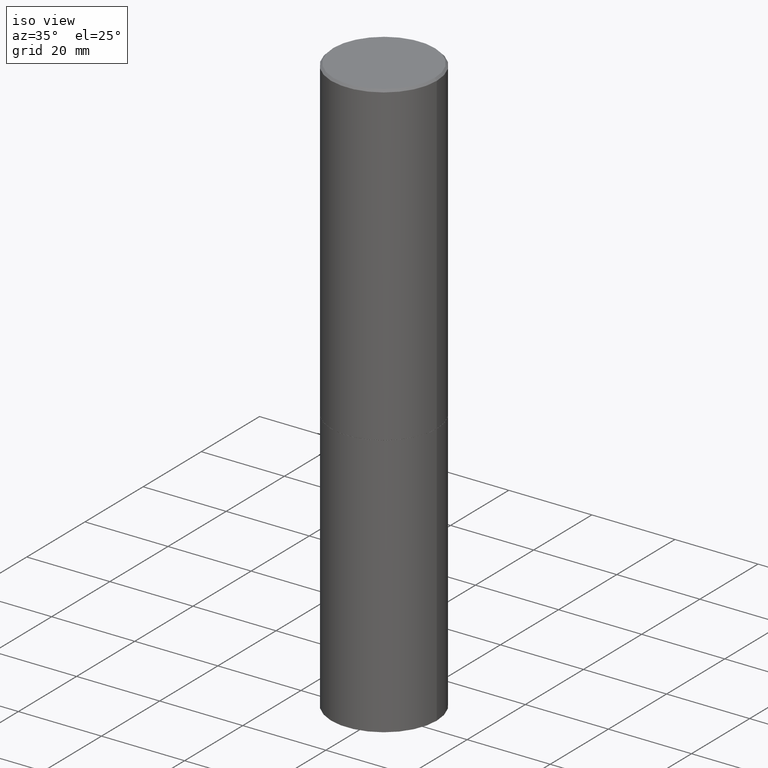
[diagram: clean part render]
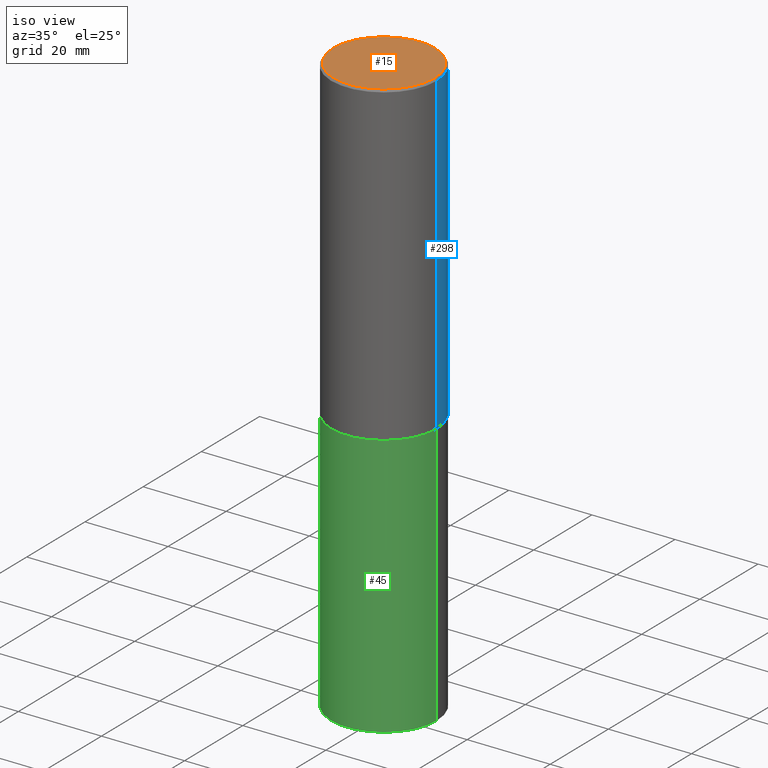
[diagram: same view with three faces highlighted in distinct colors, each labeled with its STEP entity id]
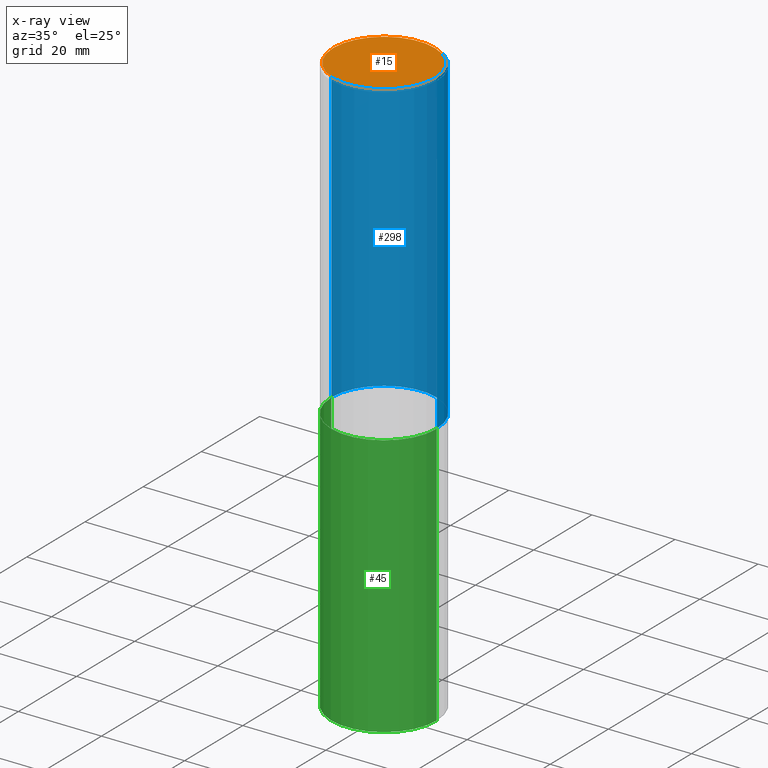
[diagram: x-ray of the same camera — body ghosted, the three highlighted faces saturated]
A machine part, iso view with three faces highlighted in distinct colors.
The next image is the same camera in x-ray (body ghosted, the three faces saturated) — at least one of them is partly hidden behind the body in this view.
Their STEP definitions:

[orange] entity #15 — the highlighted planar face has unit normal (0, -0, -1).
#15 = ADVANCED_FACE ( 'NONE', ( #305 ), #23, .F. ) ;
#23 = PLANE ( 'NONE',  #313 ) ;
#49 = ORIENTED_EDGE ( 'NONE', *, *, #73, .T. ) ;
#50 = CARTESIAN_POINT ( 'NONE',  ( 3.351822085289405181E-15, 0.4799999999999996492, -1.669508273909558064E-15 ) ) ;
#52 = CARTESIAN_POINT ( 'NONE',  ( -3.131554243005659264E-46, 4.471029511141341874E-32, 1.280553747030123384E-17 ) ) ;
#70 = DIRECTION ( 'NONE',  ( 1.000000000000000000, -6.982962677686267499E-15, 4.876036955247132767E-29 ) ) ;
#73 = EDGE_CURVE ( 'NONE', #83, #198, #214, .T. ) ;
#83 = VERTEX_POINT ( 'NONE', #190 ) ;
#92 = EDGE_CURVE ( 'NONE', #198, #83, #228, .T. ) ;
#145 = DIRECTION ( 'NONE',  ( 2.438088387897960049E-29, -3.491481338843145188E-15, -1.000000000000000000 ) ) ;
#149 = DIRECTION ( 'NONE',  ( -2.445468806185136597E-29, 3.491481338843145583E-15, 1.000000000000000000 ) ) ;
#190 = CARTESIAN_POINT ( 'NONE',  ( 0.4799999999999996492, -3.396558832296480127E-15, 1.280553747032483033E-17 ) ) ;
#198 = VERTEX_POINT ( 'NONE', #299 ) ;
#211 = CARTESIAN_POINT ( 'NONE',  ( -3.131554243005659264E-46, 4.471029511141341874E-32, 1.280553747030123384E-17 ) ) ;
#214 = CIRCLE ( 'NONE', #315, 0.4799999999999996492 ) ;
#228 = CIRCLE ( 'NONE', #243, 0.4799999999999996492 ) ;
#243 = AXIS2_PLACEMENT_3D ( 'NONE', #52, #149, #361 ) ;
#248 = DIRECTION ( 'NONE',  ( -1.000000000000000000, 6.982962677686265922E-15, -4.876176775795935793E-29 ) ) ;
#273 = EDGE_LOOP ( 'NONE', ( #293, #49 ) ) ;
#290 = DIRECTION ( 'NONE',  ( -2.445468806185136597E-29, 3.491481338843145583E-15, 1.000000000000000000 ) ) ;
#293 = ORIENTED_EDGE ( 'NONE', *, *, #92, .T. ) ;
#299 = CARTESIAN_POINT ( 'NONE',  ( -0.4799999999999996492, 3.386736898677836830E-15, 1.280553747027767124E-17 ) ) ;
#305 = FACE_OUTER_BOUND ( 'NONE', #273, .T. ) ;
#313 = AXIS2_PLACEMENT_3D ( 'NONE', #50, #145, #248 ) ;
#315 = AXIS2_PLACEMENT_3D ( 'NONE', #211, #290, #70 ) ;
#361 = DIRECTION ( 'NONE',  ( 1.000000000000000000, -6.982962677686267499E-15, 4.876036955247132767E-29 ) ) ;

[blue] entity #298 — the highlighted cylindrical surface (partial cylindrical patch) has radius 12.7 mm, axis along (-0, 0, 1).
#1 = VERTEX_POINT ( 'NONE', #246 ) ;
#24 = EDGE_CURVE ( 'NONE', #175, #1, #344, .T. ) ;
#29 = ORIENTED_EDGE ( 'NONE', *, *, #167, .T. ) ;
#36 = AXIS2_PLACEMENT_3D ( 'NONE', #76, #130, #216 ) ;
#48 = CARTESIAN_POINT ( 'NONE',  ( 0.000000000000000000, 0.000000000000000000, 0.000000000000000000 ) ) ;
#55 = VERTEX_POINT ( 'NONE', #208 ) ;
#69 = DIRECTION ( 'NONE',  ( -2.445468806185136877E-29, 3.491481338843145188E-15, 1.000000000000000000 ) ) ;
#72 = AXIS2_PLACEMENT_3D ( 'NONE', #363, #117, #287 ) ;
#76 = CARTESIAN_POINT ( 'NONE',  ( 7.333960949749226429E-29, -1.047095253519059492E-14, -2.999000000000000554 ) ) ;
#105 = CARTESIAN_POINT ( 'NONE',  ( -0.4999999999999998335, 3.552713678800499746E-15, -2.459467545127452330E-29 ) ) ;
#117 = DIRECTION ( 'NONE',  ( -2.445468806185136597E-29, 3.491481338843145583E-15, 1.000000000000000000 ) ) ;
#130 = DIRECTION ( 'NONE',  ( -2.445468806185136597E-29, 3.491481338843145583E-15, 1.000000000000000000 ) ) ;
#132 = ORIENTED_EDGE ( 'NONE', *, *, #257, .F. ) ;
#138 = VECTOR ( 'NONE', #69, 39.37007874015748143 ) ;
#155 = VECTOR ( 'NONE', #218, 39.37007874015748143 ) ;
#167 = EDGE_CURVE ( 'NONE', #55, #309, #206, .T. ) ;
#168 = ORIENTED_EDGE ( 'NONE', *, *, #322, .T. ) ;
#170 = FACE_OUTER_BOUND ( 'NONE', #213, .T. ) ;
#174 = DIRECTION ( 'NONE',  ( -2.445468806185136597E-29, 3.491481338843145583E-15, 1.000000000000000000 ) ) ;
#175 = VERTEX_POINT ( 'NONE', #326 ) ;
#176 = CYLINDRICAL_SURFACE ( 'NONE', #310, 0.4999999999999998335 ) ;
#206 = CIRCLE ( 'NONE', #36, 0.5000000000000000000 ) ;
#208 = CARTESIAN_POINT ( 'NONE',  ( 0.5000000000000000000, -1.396243387403372828E-14, -2.999000000000000554 ) ) ;
#209 = LINE ( 'NONE', #320, #138 ) ;
#213 = EDGE_LOOP ( 'NONE', ( #29, #168, #330, #132 ) ) ;
#216 = DIRECTION ( 'NONE',  ( 1.000000000000000000, -6.982962677686266711E-15, 0.000000000000000000 ) ) ;
#218 = DIRECTION ( 'NONE',  ( -2.445468806185136877E-29, 3.491481338843145188E-15, 1.000000000000000000 ) ) ;
#245 = CARTESIAN_POINT ( 'NONE',  ( -0.5000000000000000000, -1.717677402183226998E-15, -2.999000000000000554 ) ) ;
#246 = CARTESIAN_POINT ( 'NONE',  ( -0.4999999999999997224, 3.421651712066268085E-15, -0.02000000000000012879 ) ) ;
#257 = EDGE_CURVE ( 'NONE', #55, #175, #209, .T. ) ;
#276 = DIRECTION ( 'NONE',  ( 1.000000000000000000, -6.982962677686267499E-15, 4.876176775795936353E-29 ) ) ;
#280 = LINE ( 'NONE', #105, #155 ) ;
#287 = DIRECTION ( 'NONE',  ( 1.000000000000000000, -6.982962677686266711E-15, 0.000000000000000000 ) ) ;
#298 = ADVANCED_FACE ( 'NONE', ( #170 ), #176, .T. ) ;
#309 = VERTEX_POINT ( 'NONE', #245 ) ;
#310 = AXIS2_PLACEMENT_3D ( 'NONE', #48, #174, #276 ) ;
#320 = CARTESIAN_POINT ( 'NONE',  ( 0.4999999999999998335, -3.491481338843132566E-15, 2.438088387897967336E-29 ) ) ;
#322 = EDGE_CURVE ( 'NONE', #309, #1, #280, .T. ) ;
#326 = CARTESIAN_POINT ( 'NONE',  ( 0.4999999999999997224, -3.500078625662627502E-15, -0.02000000000000012879 ) ) ;
#330 = ORIENTED_EDGE ( 'NONE', *, *, #24, .F. ) ;
#344 = CIRCLE ( 'NONE', #72, 0.4999999999999997224 ) ;
#363 = CARTESIAN_POINT ( 'NONE',  ( 4.890937612370304688E-31, -6.982962677686335982E-17, -0.02000000000000012879 ) ) ;

[green] entity #45 — the highlighted cylindrical surface (partial cylindrical patch) has radius 12.7 mm, axis along (-0, 0, 1).
#33 = VECTOR ( 'NONE', #262, 39.37007874015748143 ) ;
#35 = EDGE_CURVE ( 'NONE', #335, #277, #233, .T. ) ;
#45 = ADVANCED_FACE ( 'NONE', ( #67 ), #157, .T. ) ;
#46 = ORIENTED_EDGE ( 'NONE', *, *, #352, .T. ) ;
#67 = FACE_OUTER_BOUND ( 'NONE', #147, .T. ) ;
#74 = AXIS2_PLACEMENT_3D ( 'NONE', #347, #75, #125 ) ;
#75 = DIRECTION ( 'NONE',  ( -2.445468806185136597E-29, 3.491481338843145583E-15, 1.000000000000000000 ) ) ;
#79 = CARTESIAN_POINT ( 'NONE',  ( 1.345007843401824904E-28, -1.920314736363729972E-14, -5.500000000000000000 ) ) ;
#81 = VERTEX_POINT ( 'NONE', #189 ) ;
#84 = CARTESIAN_POINT ( 'NONE',  ( 0.5000000000000000000, -1.396592535537256813E-14, -2.999999999999999556 ) ) ;
#94 = DIRECTION ( 'NONE',  ( 1.000000000000000000, -6.982962677686266711E-15, 4.876176775795935793E-29 ) ) ;
#103 = LINE ( 'NONE', #359, #278 ) ;
#119 = EDGE_CURVE ( 'NONE', #81, #336, #103, .T. ) ;
#125 = DIRECTION ( 'NONE',  ( 1.000000000000000000, -6.982962677686266711E-15, 0.000000000000000000 ) ) ;
#147 = EDGE_LOOP ( 'NONE', ( #366, #46, #171, #192 ) ) ;
#157 = CYLINDRICAL_SURFACE ( 'NONE', #334, 0.5000000000000000000 ) ;
#171 = ORIENTED_EDGE ( 'NONE', *, *, #119, .T. ) ;
#189 = CARTESIAN_POINT ( 'NONE',  ( 0.5000000000000000000, -2.269462870248043307E-14, -5.500000000000000000 ) ) ;
#191 = EDGE_CURVE ( 'NONE', #277, #336, #364, .T. ) ;
#192 = ORIENTED_EDGE ( 'NONE', *, *, #191, .F. ) ;
#194 = DIRECTION ( 'NONE',  ( -2.445468806185136597E-29, 3.491481338843145583E-15, 1.000000000000000000 ) ) ;
#204 = CARTESIAN_POINT ( 'NONE',  ( -0.5000000000000000000, 3.552713678800500929E-15, -2.459467545127452891E-29 ) ) ;
#227 = DIRECTION ( 'NONE',  ( -2.445468806185136877E-29, 3.491481338843145188E-15, 1.000000000000000000 ) ) ;
#233 = LINE ( 'NONE', #204, #33 ) ;
#239 = CARTESIAN_POINT ( 'NONE',  ( 0.000000000000000000, 0.000000000000000000, 0.000000000000000000 ) ) ;
#262 = DIRECTION ( 'NONE',  ( -2.445468806185136877E-29, 3.491481338843145188E-15, 1.000000000000000000 ) ) ;
#277 = VERTEX_POINT ( 'NONE', #351 ) ;
#278 = VECTOR ( 'NONE', #227, 39.37007874015748143 ) ;
#289 = CIRCLE ( 'NONE', #302, 0.5000000000000000000 ) ;
#302 = AXIS2_PLACEMENT_3D ( 'NONE', #79, #194, #304 ) ;
#304 = DIRECTION ( 'NONE',  ( 1.000000000000000000, -6.982962677686262766E-15, 0.000000000000000000 ) ) ;
#324 = DIRECTION ( 'NONE',  ( -2.445468806185136597E-29, 3.491481338843145583E-15, 1.000000000000000000 ) ) ;
#331 = CARTESIAN_POINT ( 'NONE',  ( -0.5000000000000000000, -1.128608201128286632E-14, -5.500000000000000000 ) ) ;
#334 = AXIS2_PLACEMENT_3D ( 'NONE', #239, #324, #94 ) ;
#335 = VERTEX_POINT ( 'NONE', #331 ) ;
#336 = VERTEX_POINT ( 'NONE', #84 ) ;
#347 = CARTESIAN_POINT ( 'NONE',  ( 7.336406418555408669E-29, -1.047444401652943478E-14, -2.999999999999999556 ) ) ;
#351 = CARTESIAN_POINT ( 'NONE',  ( -0.5000000000000000000, -1.128608201128286632E-14, -2.999999999999999556 ) ) ;
#352 = EDGE_CURVE ( 'NONE', #335, #81, #289, .T. ) ;
#359 = CARTESIAN_POINT ( 'NONE',  ( 0.5000000000000000000, -3.491481338843133355E-15, 2.438088387897967896E-29 ) ) ;
#364 = CIRCLE ( 'NONE', #74, 0.5000000000000000000 ) ;
#366 = ORIENTED_EDGE ( 'NONE', *, *, #35, .F. ) ;